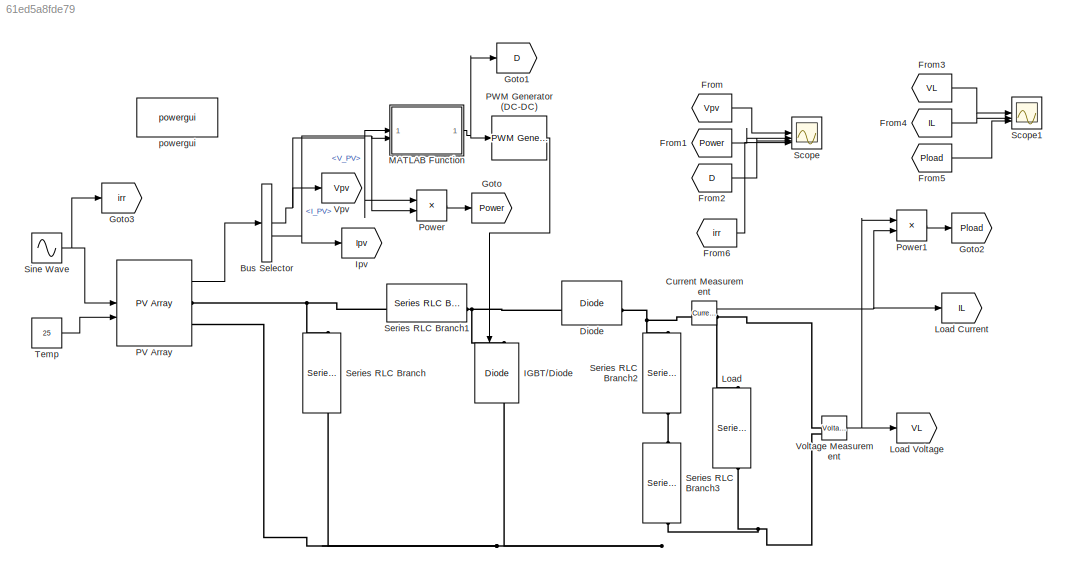
MODEL slx_61ed5a8fde79
KIND model
CONFIG AbsTol = auto
CONFIG EnableMultiTasking = off
CONFIG FixedStep = 5e-6
CONFIG MaxStep = auto
CONFIG MinStep = auto
CONFIG RelTol = 1e-3
CONFIG SampleTimeConstraint = Unconstrained
CONFIG SolverName = FixedStepAuto
CONFIG StartTime = 0.0
CONFIG StopTime = 10.0
BLOCK [BusSelector] Bus Selector
  OutputSignals = V_PV,I_PV
BLOCK [Reference] Current Measurement  REF=spsCurrentMeasurementLib/Current Measurement
  LibrarySourceBlock = sps_lib/Sensors and Measurements/Current Measurement
  SourceBlock = spsCurrentMeasurementLib/Current Measurement
  SourceType = Current Measurement
  UserDataPersistent = on
BLOCK [Reference] Diode  REF=spsDiodeLib/Diode
  LibrarySourceBlock = sps_lib/Power Electronics/Diode
  SourceBlock = spsDiodeLib/Diode
  SourceType = Diode
BLOCK [From] From
  GotoTag = Vpv
  TagVisibility = global
BLOCK [From] From1
  GotoTag = Power
  TagVisibility = global
BLOCK [From] From2
  GotoTag = D
  TagVisibility = global
BLOCK [From] From3
  GotoTag = VL
  TagVisibility = global
BLOCK [From] From4
  GotoTag = IL
  TagVisibility = global
BLOCK [From] From5
  GotoTag = Pload
  TagVisibility = global
BLOCK [From] From6
  GotoTag = irr
  TagVisibility = global
BLOCK [Goto] Goto
  GotoTag = Power
  TagVisibility = global
BLOCK [Goto] Goto1
  GotoTag = D
  TagVisibility = global
BLOCK [Goto] Goto2
  GotoTag = Pload
  TagVisibility = global
BLOCK [Goto] Goto3
  GotoTag = irr
  TagVisibility = global
BLOCK [Reference] IGBT//Diode  REF=spsIGBTDiodeLib/IGBT//Diode
  LibrarySourceBlock = sps_lib/Power Electronics/IGBT//Diode
  NameLocation = left
  SourceBlock = spsIGBTDiodeLib/IGBT//Diode
  SourceType = IGBT/Diode
BLOCK [Goto] Ipv
  GotoTag = Ipv
  TagVisibility = global
BLOCK [Reference] Load  REF=spsSeriesRLCBranchLib/Series RLC Branch
  LibrarySourceBlock = sps_lib/Passives/Series RLC Branch
  NameLocation = right
  SourceBlock = spsSeriesRLCBranchLib/Series RLC Branch
  SourceType = Series RLC Branch
BLOCK [Goto] Load Current
  GotoTag = IL
  TagVisibility = global
BLOCK [Goto] Load Voltage
  GotoTag = VL
  TagVisibility = global
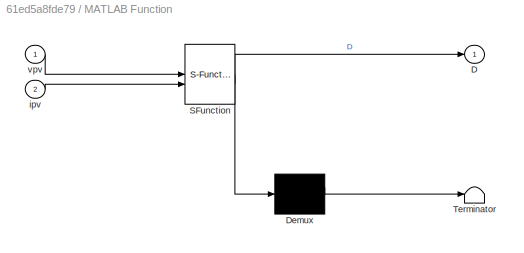
BLOCK [SubSystem] MATLAB Function
  ErrorFcn = Stateflow.Translate.translate
  PermitHierarchicalResolution = ExplicitOnly
  SFBlockType = MATLAB Function
  TreatAsAtomicUnit = on
BLOCK [Demux] MATLAB Function/ Demux 
  Outputs = 1
BLOCK [S-Function] MATLAB Function/ SFunction 
  EnableBusSupport = on
  FunctionName = sf_sfun
  PortCounts = [2 2]
  SFcnIsStateOwnerBlock = off
  SFunctionDeploymentMode = off
  Tag = Stateflow S-Function 2
BLOCK [Terminator] MATLAB Function/ Terminator 
BLOCK [Outport] MATLAB Function/D
BLOCK [Inport] MATLAB Function/ipv
  Port = 2
BLOCK [Inport] MATLAB Function/vpv
BLOCK [Reference] PV Array  REF=spsPVArrayLib/PV Array
  LibrarySourceBlock = sps_lib/Sources/PV Array
  SourceBlock = spsPVArrayLib/PV Array
  SourceType = PV array
BLOCK [Reference] PWM Generator (DC-DC)  REF=spsPWMGeneratorDCDCLib/PWM Generator
(DC-DC)
  LibrarySourceBlock = sps_lib/Power Electronics/Power Electronics Control/PWM Generator\n(DC-DC)
  SourceBlock = spsPWMGeneratorDCDCLib/PWM Generator\n(DC-DC)
  SourceType = PWM Generator (DC-DC)
BLOCK [Product] Power
BLOCK [Product] Power1
BLOCK [Scope] Scope
  Floating = off
  NumInputPorts = 4
  ScopeSpecificationString = Simulink.scopes.TimeScopeBlockCfg('CurrentConfiguration', extmgr.ConfigurationSet(extmgr.Configuration('Core','General UI',true),extmgr.Configuration('Core','Source UI',true),extmgr.Configuration('Sources','WiredSimulink',true),extmgr.Configuration('Visuals','Time Domain',true,'SerializedDisplays',{struct('MinYLimReal','-817.63104','MaxYLimReal','779.23457','YLabelReal','','MinYLimMag',' 0.00000',...<+2725ch>
BLOCK [Scope] Scope1
  Floating = off
  NumInputPorts = 3
  ScopeSpecificationString = Simulink.scopes.TimeScopeBlockCfg('CurrentConfiguration', extmgr.ConfigurationSet(extmgr.Configuration('Core','General UI',true),extmgr.Configuration('Core','Source UI',true),extmgr.Configuration('Sources','WiredSimulink',true,'DataLoggingVariableName','ScopeData1'),extmgr.Configuration('Visuals','Time Domain',true,'SerializedDisplays',{struct('MinYLimReal','-1.00000','MaxYLimReal','1.00000','YLab...<+3142ch>
BLOCK [Reference] Series RLC Branch  REF=spsSeriesRLCBranchLib/Series RLC Branch
  LibrarySourceBlock = sps_lib/Passives/Series RLC Branch
  NameLocation = left
  SourceBlock = spsSeriesRLCBranchLib/Series RLC Branch
  SourceType = Series RLC Branch
BLOCK [Reference] Series RLC Branch1  REF=spsSeriesRLCBranchLib/Series RLC Branch
  LibrarySourceBlock = sps_lib/Passives/Series RLC Branch
  NameLocation = top
  SourceBlock = spsSeriesRLCBranchLib/Series RLC Branch
  SourceType = Series RLC Branch
BLOCK [Reference] Series RLC Branch2  REF=spsSeriesRLCBranchLib/Series RLC Branch
  LibrarySourceBlock = sps_lib/Passives/Series RLC Branch
  NameLocation = right
  SourceBlock = spsSeriesRLCBranchLib/Series RLC Branch
  SourceType = Series RLC Branch
BLOCK [Reference] Series RLC Branch3  REF=spsSeriesRLCBranchLib/Series RLC Branch
  LibrarySourceBlock = sps_lib/Passives/Series RLC Branch
  NameLocation = right
  SourceBlock = spsSeriesRLCBranchLib/Series RLC Branch
  SourceType = Series RLC Branch
BLOCK [Sin] Sine Wave
  Amplitude = 1000
  SampleTime = 0
  TimeSource = Use external signal
BLOCK [Constant] Temp
  Value = 25
BLOCK [Reference] Voltage Measurement  REF=spsVoltageMeasurementLib/Voltage Measurement
  LibrarySourceBlock = sps_lib/Sensors and Measurements/Voltage Measurement
  SourceBlock = spsVoltageMeasurementLib/Voltage Measurement
  SourceType = Voltage Measurement
  UserDataPersistent = on
BLOCK [Goto] Vpv
  GotoTag = Vpv
  TagVisibility = global
BLOCK [Reference] powergui  REF=sps_lib/powergui
  LibrarySourceBlock = sps_lib/powergui
  Priority = 1
  SourceBlock = sps_lib/powergui
  SourceType = PSB option menu block
NET Bus Selector:1 -> MATLAB Function:1, Power:1, Vpv:1
NET Bus Selector:2 -> Ipv:1, MATLAB Function:2, Power:2
NET Current Measurement:1 -> Load Current:1, Power1:2
LINE From1:1 -> Scope:2
LINE From2:1 -> Scope:3
LINE From3:1 -> Scope1:1
LINE From4:1 -> Scope1:2
LINE From5:1 -> Scope1:3
LINE From6:1 -> Scope:4
LINE From:1 -> Scope:1
NET MATLAB Function:1 -> Goto1:1, PWM Generator (DC-DC):1
LINE PV Array:1 -> Bus Selector:1
LINE PWM Generator (DC-DC):1 -> IGBT//Diode:1
LINE Power1:1 -> Goto2:1
LINE Power:1 -> Goto:1
NET Sine Wave:1 -> Goto3:1, PV Array:1
LINE Temp:1 -> PV Array:2
NET Voltage Measurement:1 -> Load Voltage:1, Power1:1
PNET net1: Current Measurement:LConn1 -- Diode:RConn1 -- Series RLC Branch2:RConn1
PNET net2: Current Measurement:RConn1 -- Load:RConn1 -- Voltage Measurement:LConn1
PNET net3: Diode:LConn1 -- IGBT//Diode:LConn1 -- Series RLC Branch1:LConn1
PNET net4: IGBT//Diode:RConn1 -- Load:LConn1 -- PV Array:RConn2 -- Series RLC Branch3:LConn1 -- Series RLC Branch:RConn1 -- Voltage Measurement:LConn2
PNET net5: PV Array:RConn1 -- Series RLC Branch1:RConn1 -- Series RLC Branch:LConn1
PLINE Series RLC Branch2:LConn1 -- Series RLC Branch3:RConn1
note: NET lines group one-source signal fan-out (src -> all destinations, sorted); 1:1 wires keep LINE; PNET lines group multi-terminal physical nets as a canonical sorted terminal list (undirected conserving connections); 2-terminal nets keep the pairwise PLINE form
CHART MATLAB Function states=1 transitions=1
  STATE_LABEL 'eML_blk_kernel()'
  STATE_LABEL 'SCRIPT:\nfunction D = fcn(vpv, ipv)\n\nDinit =0.4;\nDmax=0.9;\nDmin =0.1;\ndeltaD =20e-6;\n\n%{ \npersistent variables are local to the function\nin which they are declared, yet their values are retained\nin memory between calls to the function\n\nIn this instance, this variable are our old V,P,D values\n\n%}\npersistent Vold Pold Dold;\n\ndataType="double";\n\nif isempty(Vold)\n    Vold=0;\n    Pold=0;\n    Dold=Dinit;...<+510ch>'
CHART  states=0 transitions=0
